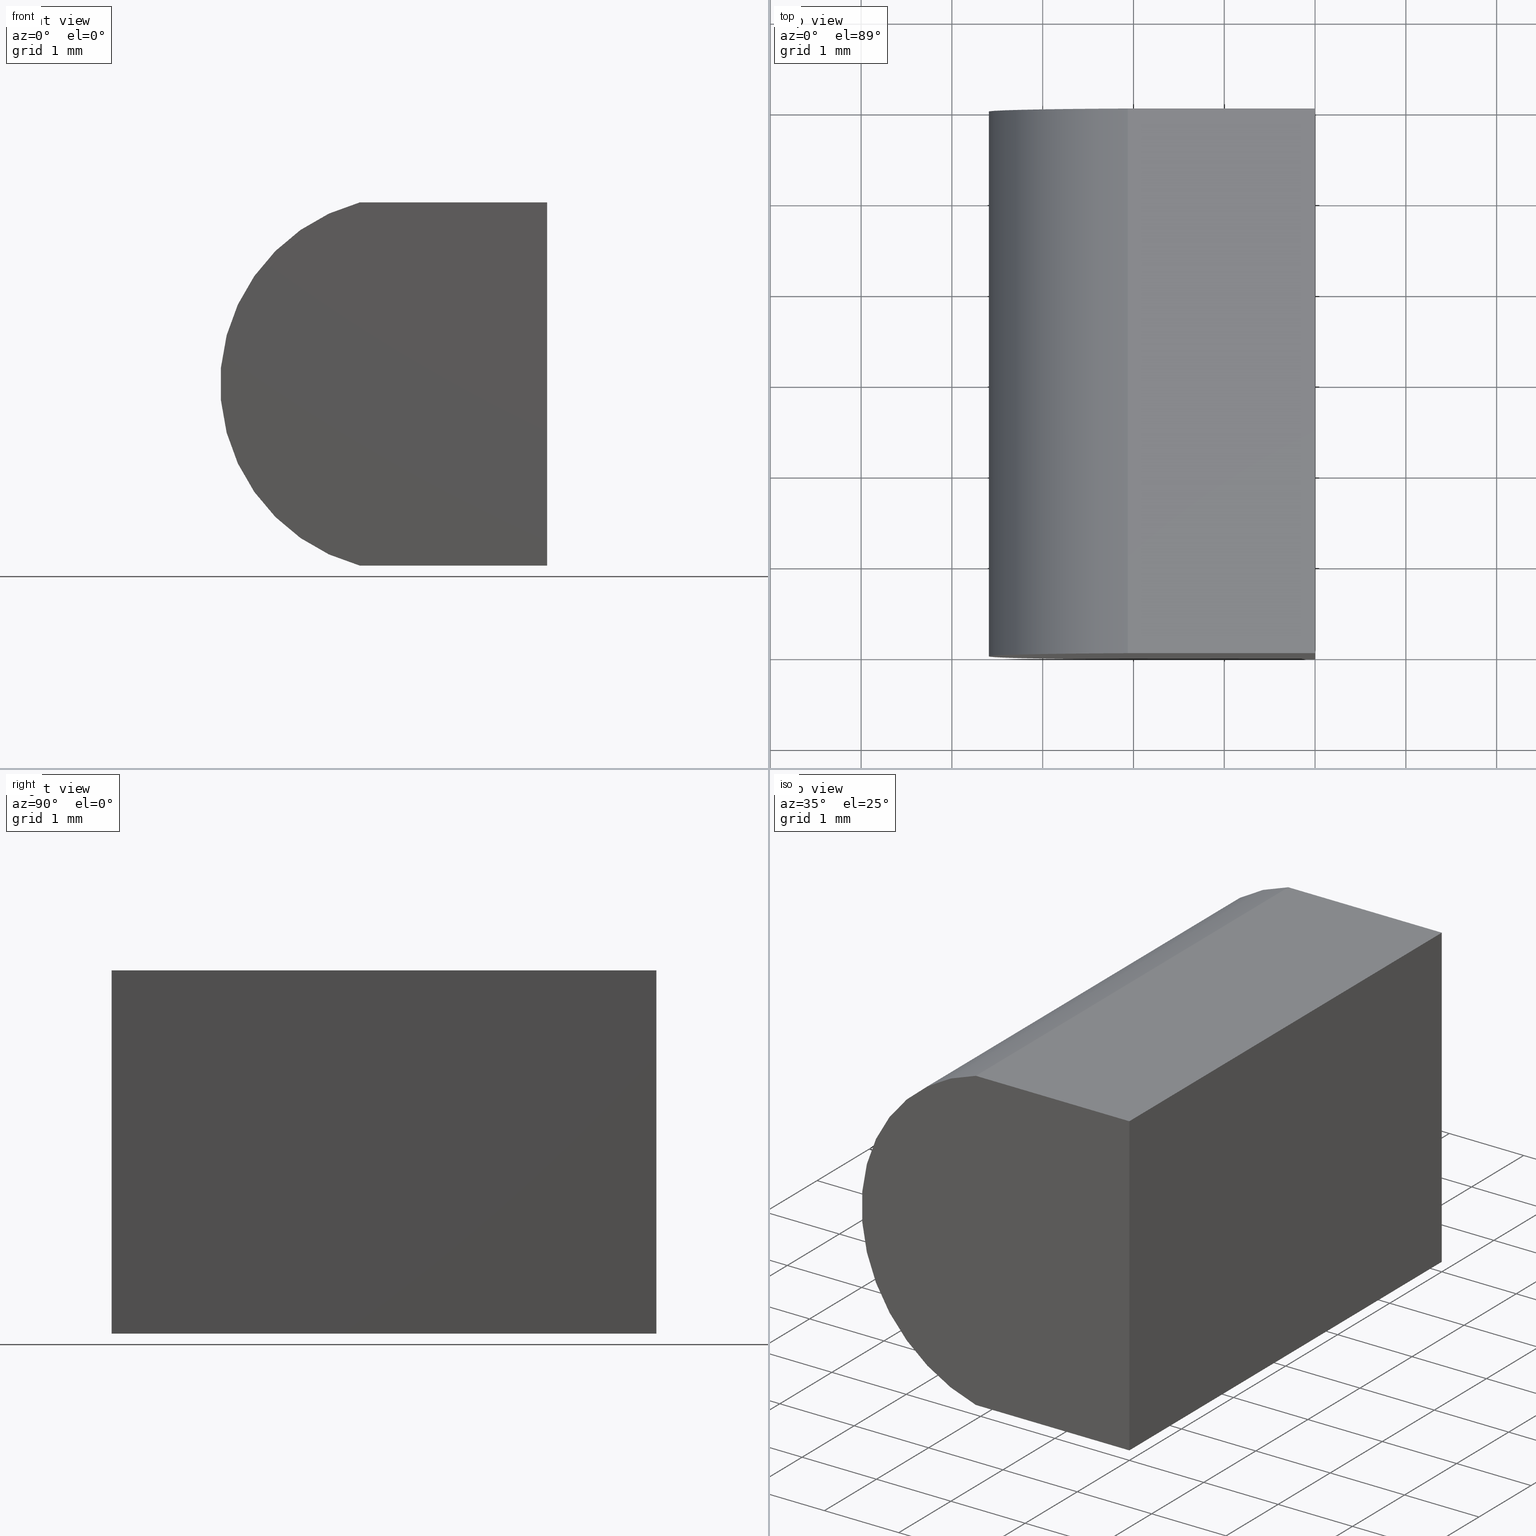
[diagram: canonical four-view strip — front | top / right | iso, engineering-drawing reading convention]
A machine part, canonical four-view strip (front | top / right | iso — engineering-drawing reading convention). The complete STEP part file that produces these views, byte-faithful:
ISO-10303-21;
HEADER;
FILE_DESCRIPTION (( 'STEP AP214' ),
    '1' );
FILE_NAME ('155001.STEP',
    '2019-06-14T03:48:21',
    ( 'user' ),
    ( '΢���й�' ),
    'SwSTEP 2.0',
    'SolidWorks 2016',
    '' );
FILE_SCHEMA (( 'AUTOMOTIVE_DESIGN' ));
ENDSEC;

DATA;
#1 = EDGE_LOOP ( 'NONE', ( #30, #145, #148, #181 ) ) ;
#2 = VECTOR ( 'NONE', #83, 1000.000000000000000 ) ;
#3 = ADVANCED_FACE ( 'NONE', ( #34 ), #179, .F. ) ;
#4 = CARTESIAN_POINT ( 'NONE',  ( 0.0000000000000000000, 6.000000000000000000, 0.0000000000000000000 ) ) ;
#5 = CARTESIAN_POINT ( 'NONE',  ( -1.529999999999999600, 6.000000000000000000, 2.000000000000000000 ) ) ;
#6 = VECTOR ( 'NONE', #81, 1000.000000000000000 ) ;
#7 = CARTESIAN_POINT ( 'NONE',  ( 0.0000000000000000000, 6.000000000000000000, 0.0000000000000000000 ) ) ;
#8 = DIRECTION ( 'NONE',  ( -0.0000000000000000000, -1.000000000000000000, -0.0000000000000000000 ) ) ;
#9 = VECTOR ( 'NONE', #193, 1000.000000000000000 ) ;
#10 =( NAMED_UNIT ( * ) PLANE_ANGLE_UNIT ( ) SI_UNIT ( $, .RADIAN. ) );
#11 = FACE_OUTER_BOUND ( 'NONE', #21, .T. ) ;
#12 = CARTESIAN_POINT ( 'NONE',  ( 0.0000000000000000000, 0.0000000000000000000, 0.0000000000000000000 ) ) ;
#13 = PRODUCT_DEFINITION_CONTEXT ( 'detailed design', #64, 'design' ) ;
#14 = ADVANCED_FACE ( 'NONE', ( #24 ), #130, .F. ) ;
#15 = AXIS2_PLACEMENT_3D ( 'NONE', #118, #192, #197 ) ;
#16 = ORIENTED_EDGE ( 'NONE', *, *, #108, .F. ) ;
#17 = PRODUCT_DEFINITION ( 'δ֪', '', #43, #13 ) ;
#18 = SHAPE_DEFINITION_REPRESENTATION ( #86, #93 ) ;
#19 =( GEOMETRIC_REPRESENTATION_CONTEXT ( 3 ) GLOBAL_UNCERTAINTY_ASSIGNED_CONTEXT ( ( #174 ) ) GLOBAL_UNIT_ASSIGNED_CONTEXT ( ( #147, #156, #50 ) ) REPRESENTATION_CONTEXT ( 'NONE', 'WORKASPACE' ) );
#20 = CARTESIAN_POINT ( 'NONE',  ( -2.063760245803301500, 6.000000000000000000, 4.336808689942017700E-016 ) ) ;
#21 = EDGE_LOOP ( 'NONE', ( #51, #170, #171, #113 ) ) ;
#22 = VERTEX_POINT ( 'NONE', #80 ) ;
#23 = AXIS2_PLACEMENT_3D ( 'NONE', #165, #79, #98 ) ;
#24 = FACE_OUTER_BOUND ( 'NONE', #85, .T. ) ;
#25 = VECTOR ( 'NONE', #137, 1000.000000000000000 ) ;
#26 = PRESENTATION_LAYER_ASSIGNMENT (  '', '', ( #89 ) ) ;
#27 = ORIENTED_EDGE ( 'NONE', *, *, #78, .F. ) ;
#28 = CLOSED_SHELL ( 'NONE', ( #3, #157, #166, #127, #169, #14 ) ) ;
#29 = EDGE_CURVE ( 'NONE', #201, #188, #195, .T. ) ;
#30 = ORIENTED_EDGE ( 'NONE', *, *, #56, .T. ) ;
#31 = DIRECTION ( 'NONE',  ( 0.0000000000000000000, 1.000000000000000000, 0.0000000000000000000 ) ) ;
#32 = CARTESIAN_POINT ( 'NONE',  ( 0.0000000000000000000, 0.0000000000000000000, 4.000000000000000000 ) ) ;
#33 = AXIS2_PLACEMENT_3D ( 'NONE', #159, #8, #105 ) ;
#34 = FACE_OUTER_BOUND ( 'NONE', #104, .T. ) ;
#35 = ORIENTED_EDGE ( 'NONE', *, *, #116, .T. ) ;
#36 = DIRECTION ( 'NONE',  ( 4.202822201620565800E-016, -0.0000000000000000000, 1.000000000000000000 ) ) ;
#37 = AXIS2_PLACEMENT_3D ( 'NONE', #5, #53, #88 ) ;
#38 = PRODUCT ( '155001', '155001', '', ( #164 ) ) ;
#39 =( GEOMETRIC_REPRESENTATION_CONTEXT ( 3 ) GLOBAL_UNCERTAINTY_ASSIGNED_CONTEXT ( ( #58 ) ) GLOBAL_UNIT_ASSIGNED_CONTEXT ( ( #185, #10, #123 ) ) REPRESENTATION_CONTEXT ( 'NONE', 'WORKASPACE' ) );
#40 = ORIENTED_EDGE ( 'NONE', *, *, #74, .F. ) ;
#41 = MANIFOLD_SOLID_BREP ( '͹̨-����1', #28 ) ;
#42 = MECHANICAL_DESIGN_GEOMETRIC_PRESENTATION_REPRESENTATION (  '', ( #89 ), #133 ) ;
#43 = PRODUCT_DEFINITION_FORMATION_WITH_SPECIFIED_SOURCE ( '�κ�', '', #38, .NOT_KNOWN. ) ;
#44 = SURFACE_SIDE_STYLE ('',( #100 ) ) ;
#45 = PRODUCT_RELATED_PRODUCT_CATEGORY ( 'part', '', ( #38 ) ) ;
#46 = CARTESIAN_POINT ( 'NONE',  ( 0.0000000000000000000, 0.0000000000000000000, 0.0000000000000000000 ) ) ;
#47 = VECTOR ( 'NONE', #202, 1000.000000000000000 ) ;
#48 = CIRCLE ( 'NONE', #92, 2.069999999999999800 ) ;
#49 = AXIS2_PLACEMENT_3D ( 'NONE', #7, #36, #103 ) ;
#50 =( NAMED_UNIT ( * ) SI_UNIT ( $, .STERADIAN. ) SOLID_ANGLE_UNIT ( ) );
#51 = ORIENTED_EDGE ( 'NONE', *, *, #74, .T. ) ;
#52 = CARTESIAN_POINT ( 'NONE',  ( -2.063760245803301500, 0.0000000000000000000, 4.336808689942017700E-016 ) ) ;
#53 = DIRECTION ( 'NONE',  ( 0.0000000000000000000, 1.000000000000000000, 0.0000000000000000000 ) ) ;
#54 = LINE ( 'NONE', #158, #177 ) ;
#55 = DIRECTION ( 'NONE',  ( -0.0000000000000000000, -0.0000000000000000000, -1.000000000000000000 ) ) ;
#56 = EDGE_CURVE ( 'NONE', #109, #59, #48, .T. ) ;
#57 = COLOUR_RGB ( '',1.000000000000000000, 1.000000000000000000, 1.000000000000000000 ) ;
#58 = UNCERTAINTY_MEASURE_WITH_UNIT (LENGTH_MEASURE( 1.000000000000000100E-005 ), #185, 'distance_accuracy_value', 'NONE');
#59 = VERTEX_POINT ( 'NONE', #76 ) ;
#60 = CYLINDRICAL_SURFACE ( 'NONE', #33, 2.069999999999999800 ) ;
#61 = APPLICATION_CONTEXT ( 'automotive_design' ) ;
#62 = COLOUR_RGB ( '',1.000000000000000000, 1.000000000000000000, 1.000000000000000000 ) ;
#63 = ORIENTED_EDGE ( 'NONE', *, *, #131, .T. ) ;
#64 = APPLICATION_CONTEXT ( 'automotive_design' ) ;
#65 = DIRECTION ( 'NONE',  ( -1.000000000000000000, 0.0000000000000000000, 4.202822201620566300E-016 ) ) ;
#66 = ORIENTED_EDGE ( 'NONE', *, *, #186, .F. ) ;
#67 = ORIENTED_EDGE ( 'NONE', *, *, #186, .T. ) ;
#68 = ORIENTED_EDGE ( 'NONE', *, *, #116, .F. ) ;
#69 = MECHANICAL_DESIGN_GEOMETRIC_PRESENTATION_REPRESENTATION (  '', ( #72 ), #19 ) ;
#70 = PRESENTATION_STYLE_ASSIGNMENT (( #168 ) ) ;
#71 = DIRECTION ( 'NONE',  ( 0.0000000000000000000, -0.0000000000000000000, 1.000000000000000000 ) ) ;
#72 = STYLED_ITEM ( 'NONE', ( #70 ), #41 ) ;
#73 = CARTESIAN_POINT ( 'NONE',  ( -2.063760245803302000, 6.000000000000000000, 3.999999999999999100 ) ) ;
#74 = EDGE_CURVE ( 'NONE', #124, #160, #96, .T. ) ;
#75 = DIRECTION ( 'NONE',  ( 0.0000000000000000000, 0.0000000000000000000, 1.000000000000000000 ) ) ;
#76 = CARTESIAN_POINT ( 'NONE',  ( -2.063760245803302000, 0.0000000000000000000, 3.999999999999999100 ) ) ;
#77 = ORIENTED_EDGE ( 'NONE', *, *, #134, .T. ) ;
#78 = EDGE_CURVE ( 'NONE', #124, #22, #84, .T. ) ;
#79 = DIRECTION ( 'NONE',  ( 4.202822201620565800E-016, 0.0000000000000000000, -1.000000000000000000 ) ) ;
#80 = CARTESIAN_POINT ( 'NONE',  ( 0.0000000000000000000, 0.0000000000000000000, 0.0000000000000000000 ) ) ;
#81 = DIRECTION ( 'NONE',  ( -1.000000000000000000, 0.0000000000000000000, 4.202822201620566300E-016 ) ) ;
#82 = PLANE ( 'NONE',  #37 ) ;
#83 = DIRECTION ( 'NONE',  ( -0.0000000000000000000, -1.000000000000000000, -0.0000000000000000000 ) ) ;
#84 = LINE ( 'NONE', #200, #163 ) ;
#85 = EDGE_LOOP ( 'NONE', ( #68, #66, #117, #107 ) ) ;
#86 = PRODUCT_DEFINITION_SHAPE ( 'NONE', 'NONE',  #17 ) ;
#87 = LINE ( 'NONE', #111, #47 ) ;
#88 = DIRECTION ( 'NONE',  ( 0.0000000000000000000, -0.0000000000000000000, 1.000000000000000000 ) ) ;
#89 = STYLED_ITEM ( 'NONE', ( #198 ), #93 ) ;
#90 = CARTESIAN_POINT ( 'NONE',  ( -1.529999999999999600, 6.000000000000000000, 2.000000000000000000 ) ) ;
#91 = DIRECTION ( 'NONE',  ( 0.0000000000000000000, 0.0000000000000000000, 1.000000000000000000 ) ) ;
#92 = AXIS2_PLACEMENT_3D ( 'NONE', #203, #31, #91 ) ;
#93 = ADVANCED_BREP_SHAPE_REPRESENTATION ( '155001', ( #41, #15 ), #39 ) ;
#94 = APPLICATION_PROTOCOL_DEFINITION ( 'draft international standard', 'automotive_design', 1998, #61 ) ;
#95 = CARTESIAN_POINT ( 'NONE',  ( 0.0000000000000000000, 6.000000000000000000, 4.000000000000000000 ) ) ;
#96 = LINE ( 'NONE', #4, #6 ) ;
#97 = CARTESIAN_POINT ( 'NONE',  ( 0.0000000000000000000, 6.000000000000000000, 0.0000000000000000000 ) ) ;
#98 = DIRECTION ( 'NONE',  ( -1.000000000000000000, 0.0000000000000000000, -4.202822201620565800E-016 ) ) ;
#99 = AXIS2_PLACEMENT_3D ( 'NONE', #161, #114, #71 ) ;
#100 = SURFACE_STYLE_FILL_AREA ( #139 ) ;
#101 = FACE_OUTER_BOUND ( 'NONE', #1, .T. ) ;
#102 = LINE ( 'NONE', #46, #184 ) ;
#103 = DIRECTION ( 'NONE',  ( 1.000000000000000000, 0.0000000000000000000, -4.202822201620565800E-016 ) ) ;
#104 = EDGE_LOOP ( 'NONE', ( #35, #16, #40, #140 ) ) ;
#105 = DIRECTION ( 'NONE',  ( 0.0000000000000000000, 0.0000000000000000000, -1.000000000000000000 ) ) ;
#106 = PLANE ( 'NONE',  #187 ) ;
#107 = ORIENTED_EDGE ( 'NONE', *, *, #56, .F. ) ;
#108 = EDGE_CURVE ( 'NONE', #160, #109, #87, .T. ) ;
#109 = VERTEX_POINT ( 'NONE', #52 ) ;
#110 = PLANE ( 'NONE',  #23 ) ;
#111 = CARTESIAN_POINT ( 'NONE',  ( -2.063760245803301500, 6.000000000000000000, 4.336808689942017700E-016 ) ) ;
#112 = CARTESIAN_POINT ( 'NONE',  ( 0.0000000000000000000, 0.0000000000000000000, 4.000000000000000000 ) ) ;
#113 = ORIENTED_EDGE ( 'NONE', *, *, #173, .T. ) ;
#114 = DIRECTION ( 'NONE',  ( 0.0000000000000000000, 1.000000000000000000, 0.0000000000000000000 ) ) ;
#115 = AXIS2_PLACEMENT_3D ( 'NONE', #90, #172, #75 ) ;
#116 = EDGE_CURVE ( 'NONE', #22, #109, #162, .T. ) ;
#117 = ORIENTED_EDGE ( 'NONE', *, *, #134, .F. ) ;
#118 = CARTESIAN_POINT ( 'NONE',  ( 0.0000000000000000000, 0.0000000000000000000, 0.0000000000000000000 ) ) ;
#119 = FILL_AREA_STYLE ('',( #175 ) ) ;
#120 =( LENGTH_UNIT ( ) NAMED_UNIT ( * ) SI_UNIT ( .MILLI., .METRE. ) );
#121 = ORIENTED_EDGE ( 'NONE', *, *, #29, .F. ) ;
#122 = FILL_AREA_STYLE_COLOUR ( '', #62 ) ;
#123 =( NAMED_UNIT ( * ) SI_UNIT ( $, .STERADIAN. ) SOLID_ANGLE_UNIT ( ) );
#124 = VERTEX_POINT ( 'NONE', #152 ) ;
#125 = CARTESIAN_POINT ( 'NONE',  ( -2.063760245803302000, 6.000000000000000000, 3.999999999999999100 ) ) ;
#126 = SURFACE_SIDE_STYLE ('',( #150 ) ) ;
#127 = ADVANCED_FACE ( 'NONE', ( #136 ), #106, .F. ) ;
#128 = DIRECTION ( 'NONE',  ( -0.0000000000000000000, -0.0000000000000000000, -1.000000000000000000 ) ) ;
#129 = LINE ( 'NONE', #32, #9 ) ;
#130 = PLANE ( 'NONE',  #99 ) ;
#131 = EDGE_CURVE ( 'NONE', #201, #59, #176, .T. ) ;
#132 = VECTOR ( 'NONE', #65, 1000.000000000000000 ) ;
#133 =( GEOMETRIC_REPRESENTATION_CONTEXT ( 3 ) GLOBAL_UNCERTAINTY_ASSIGNED_CONTEXT ( ( #190 ) ) GLOBAL_UNIT_ASSIGNED_CONTEXT ( ( #120, #194, #151 ) ) REPRESENTATION_CONTEXT ( 'NONE', 'WORKASPACE' ) );
#134 = EDGE_CURVE ( 'NONE', #59, #154, #129, .T. ) ;
#135 = ORIENTED_EDGE ( 'NONE', *, *, #173, .F. ) ;
#136 = FACE_OUTER_BOUND ( 'NONE', #155, .T. ) ;
#137 = DIRECTION ( 'NONE',  ( -0.0000000000000000000, -1.000000000000000000, -0.0000000000000000000 ) ) ;
#138 = SURFACE_STYLE_USAGE ( .BOTH. , #44 ) ;
#139 = FILL_AREA_STYLE ('',( #122 ) ) ;
#140 = ORIENTED_EDGE ( 'NONE', *, *, #78, .T. ) ;
#141 = ORIENTED_EDGE ( 'NONE', *, *, #183, .F. ) ;
#142 = EDGE_CURVE ( 'NONE', #160, #201, #178, .T. ) ;
#143 = CARTESIAN_POINT ( 'NONE',  ( 0.0000000000000000000, 6.000000000000000000, 4.000000000000000000 ) ) ;
#144 = LINE ( 'NONE', #95, #25 ) ;
#145 = ORIENTED_EDGE ( 'NONE', *, *, #131, .F. ) ;
#146 = EDGE_LOOP ( 'NONE', ( #77, #141, #121, #63 ) ) ;
#147 =( LENGTH_UNIT ( ) NAMED_UNIT ( * ) SI_UNIT ( .MILLI., .METRE. ) );
#148 = ORIENTED_EDGE ( 'NONE', *, *, #142, .F. ) ;
#149 = APPLICATION_PROTOCOL_DEFINITION ( 'draft international standard', 'automotive_design', 1998, #64 ) ;
#150 = SURFACE_STYLE_FILL_AREA ( #119 ) ;
#151 =( NAMED_UNIT ( * ) SI_UNIT ( $, .STERADIAN. ) SOLID_ANGLE_UNIT ( ) );
#152 = CARTESIAN_POINT ( 'NONE',  ( 0.0000000000000000000, 6.000000000000000000, 0.0000000000000000000 ) ) ;
#153 = DIRECTION ( 'NONE',  ( 0.0000000000000000000, 0.0000000000000000000, 1.000000000000000000 ) ) ;
#154 = VERTEX_POINT ( 'NONE', #112 ) ;
#155 = EDGE_LOOP ( 'NONE', ( #67, #27, #135, #189 ) ) ;
#156 =( NAMED_UNIT ( * ) PLANE_ANGLE_UNIT ( ) SI_UNIT ( $, .RADIAN. ) );
#157 = ADVANCED_FACE ( 'NONE', ( #101 ), #60, .T. ) ;
#158 = CARTESIAN_POINT ( 'NONE',  ( 0.0000000000000000000, 6.000000000000000000, 0.0000000000000000000 ) ) ;
#159 = CARTESIAN_POINT ( 'NONE',  ( -1.529999999999999600, 6.000000000000000000, 2.000000000000000000 ) ) ;
#160 = VERTEX_POINT ( 'NONE', #20 ) ;
#161 = CARTESIAN_POINT ( 'NONE',  ( -1.529999999999999600, 0.0000000000000000000, 2.000000000000000000 ) ) ;
#162 = LINE ( 'NONE', #12, #132 ) ;
#163 = VECTOR ( 'NONE', #196, 1000.000000000000000 ) ;
#164 = PRODUCT_CONTEXT ( 'NONE', #61, 'mechanical' ) ;
#165 = CARTESIAN_POINT ( 'NONE',  ( 0.0000000000000000000, 6.000000000000000000, 4.000000000000000000 ) ) ;
#166 = ADVANCED_FACE ( 'NONE', ( #167 ), #110, .F. ) ;
#167 = FACE_OUTER_BOUND ( 'NONE', #146, .T. ) ;
#168 = SURFACE_STYLE_USAGE ( .BOTH. , #126 ) ;
#169 = ADVANCED_FACE ( 'NONE', ( #11 ), #82, .T. ) ;
#170 = ORIENTED_EDGE ( 'NONE', *, *, #142, .T. ) ;
#171 = ORIENTED_EDGE ( 'NONE', *, *, #29, .T. ) ;
#172 = DIRECTION ( 'NONE',  ( 0.0000000000000000000, 1.000000000000000000, 0.0000000000000000000 ) ) ;
#173 = EDGE_CURVE ( 'NONE', #188, #124, #54, .T. ) ;
#174 = UNCERTAINTY_MEASURE_WITH_UNIT (LENGTH_MEASURE( 1.000000000000000100E-005 ), #147, 'distance_accuracy_value', 'NONE');
#175 = FILL_AREA_STYLE_COLOUR ( '', #57 ) ;
#176 = LINE ( 'NONE', #73, #2 ) ;
#177 = VECTOR ( 'NONE', #55, 1000.000000000000000 ) ;
#178 = CIRCLE ( 'NONE', #115, 2.069999999999999800 ) ;
#179 = PLANE ( 'NONE',  #49 ) ;
#180 = CARTESIAN_POINT ( 'NONE',  ( 0.0000000000000000000, 6.000000000000000000, 4.000000000000000000 ) ) ;
#181 = ORIENTED_EDGE ( 'NONE', *, *, #108, .T. ) ;
#182 = DIRECTION ( 'NONE',  ( -1.000000000000000000, 0.0000000000000000000, 0.0000000000000000000 ) ) ;
#183 = EDGE_CURVE ( 'NONE', #188, #154, #144, .T. ) ;
#184 = VECTOR ( 'NONE', #128, 1000.000000000000000 ) ;
#185 =( LENGTH_UNIT ( ) NAMED_UNIT ( * ) SI_UNIT ( .MILLI., .METRE. ) );
#186 = EDGE_CURVE ( 'NONE', #154, #22, #102, .T. ) ;
#187 = AXIS2_PLACEMENT_3D ( 'NONE', #97, #182, #153 ) ;
#188 = VERTEX_POINT ( 'NONE', #180 ) ;
#189 = ORIENTED_EDGE ( 'NONE', *, *, #183, .T. ) ;
#190 = UNCERTAINTY_MEASURE_WITH_UNIT (LENGTH_MEASURE( 1.000000000000000100E-005 ), #120, 'distance_accuracy_value', 'NONE');
#191 = VECTOR ( 'NONE', #199, 1000.000000000000000 ) ;
#192 = DIRECTION ( 'NONE',  ( 0.0000000000000000000, 0.0000000000000000000, 1.000000000000000000 ) ) ;
#193 = DIRECTION ( 'NONE',  ( 1.000000000000000000, -0.0000000000000000000, 4.202822201620566300E-016 ) ) ;
#194 =( NAMED_UNIT ( * ) PLANE_ANGLE_UNIT ( ) SI_UNIT ( $, .RADIAN. ) );
#195 = LINE ( 'NONE', #143, #191 ) ;
#196 = DIRECTION ( 'NONE',  ( -0.0000000000000000000, -1.000000000000000000, -0.0000000000000000000 ) ) ;
#197 = DIRECTION ( 'NONE',  ( 1.000000000000000000, 0.0000000000000000000, 0.0000000000000000000 ) ) ;
#198 = PRESENTATION_STYLE_ASSIGNMENT (( #138 ) ) ;
#199 = DIRECTION ( 'NONE',  ( 1.000000000000000000, -0.0000000000000000000, 4.202822201620566300E-016 ) ) ;
#200 = CARTESIAN_POINT ( 'NONE',  ( 0.0000000000000000000, 6.000000000000000000, 0.0000000000000000000 ) ) ;
#201 = VERTEX_POINT ( 'NONE', #125 ) ;
#202 = DIRECTION ( 'NONE',  ( -0.0000000000000000000, -1.000000000000000000, -0.0000000000000000000 ) ) ;
#203 = CARTESIAN_POINT ( 'NONE',  ( -1.529999999999999600, 0.0000000000000000000, 2.000000000000000000 ) ) ;
#204 = PRESENTATION_LAYER_ASSIGNMENT (  '', '', ( #72 ) ) ;
ENDSEC;
END-ISO-10303-21;
